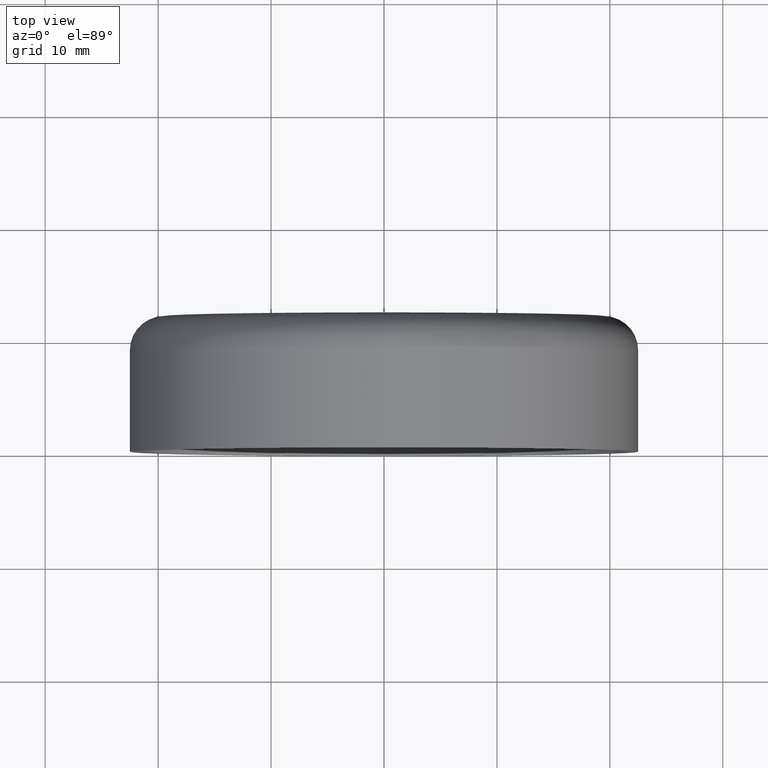
[diagram: clean part render]
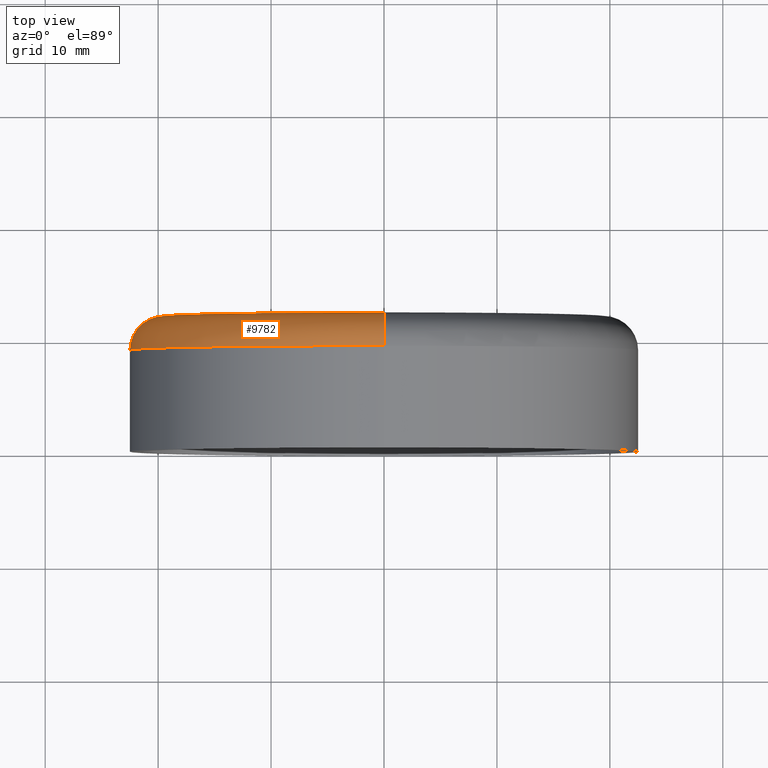
[diagram: same view with one face highlighted and labeled with its STEP entity id]
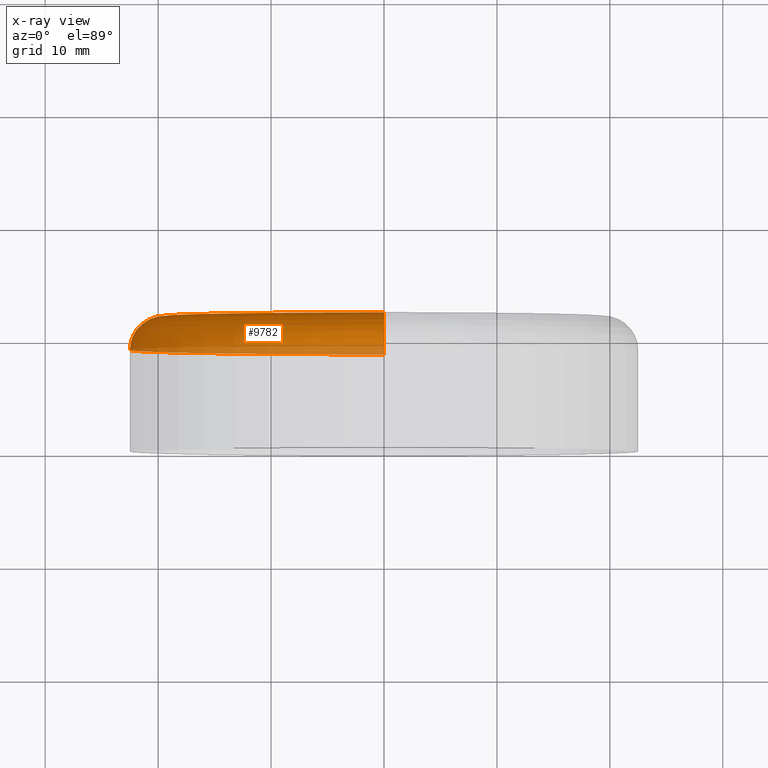
[diagram: x-ray of the same camera — body ghosted, the highlighted face saturated]
A machine part, top view. The second image highlights one B-rep face of the part: STEP entity #9782.
The next image is the same camera in x-ray: the body ghosted, the highlighted face saturated — about 18% of this face is hidden behind the body in this view.
In plain terms, the highlighted toroidal blend (fillet) surface has major radius 19.5 mm and minor (blend) radius 3 mm.
Its self-contained STEP definition (entity closure, byte-faithful):
#232 = CARTESIAN_POINT ( 'NONE',  ( 0.000000000000000000, 12.00000000000000000, 0.000000000000000000 ) ) ;
#289 = EDGE_CURVE ( 'NONE', #3229, #16257, #10585, .T. ) ;
#600 = DIRECTION ( 'NONE',  ( -0.000000000000000000, -1.000000000000000000, -0.000000000000000000 ) ) ;
#1127 = DIRECTION ( 'NONE',  ( -1.224646799147353700E-16, 0.000000000000000000, -1.000000000000000000 ) ) ;
#1257 = CARTESIAN_POINT ( 'NONE',  ( 0.000000000000000000, 12.00000000000000000, -19.50000000000000355 ) ) ;
#1828 = DIRECTION ( 'NONE',  ( 0.000000000000000000, 0.000000000000000000, -1.000000000000000000 ) ) ;
#2066 = DIRECTION ( 'NONE',  ( -1.000000000000000000, 0.000000000000000000, 0.000000000000000000 ) ) ;
#2547 = CARTESIAN_POINT ( 'NONE',  ( 0.000000000000000000, 9.000000000000001776, 0.000000000000000000 ) ) ;
#2782 = FACE_OUTER_BOUND ( 'NONE', #8574, .T. ) ;
#3208 = CIRCLE ( 'NONE', #11960, 22.50000000000000000 ) ;
#3229 = VERTEX_POINT ( 'NONE', #1257 ) ;
#4532 = VERTEX_POINT ( 'NONE', #13323 ) ;
#5652 = EDGE_CURVE ( 'NONE', #4532, #3229, #8021, .T. ) ;
#6322 = AXIS2_PLACEMENT_3D ( 'NONE', #2547, #14509, #10338 ) ;
#7726 = CARTESIAN_POINT ( 'NONE',  ( 2.388061258337339333E-15, 9.000000000000001776, 19.50000000000000355 ) ) ;
#7828 = AXIS2_PLACEMENT_3D ( 'NONE', #15298, #2066, #8535 ) ;
#8021 = CIRCLE ( 'NONE', #12507, 19.50000000000000355 ) ;
#8431 = ORIENTED_EDGE ( 'NONE', *, *, #289, .T. ) ;
#8535 = DIRECTION ( 'NONE',  ( 0.000000000000000000, 0.000000000000000000, 1.000000000000000000 ) ) ;
#8574 = EDGE_LOOP ( 'NONE', ( #13335, #12433, #8431, #12592 ) ) ;
#8908 = CARTESIAN_POINT ( 'NONE',  ( 2.755455298081544778E-15, 9.000000000000001776, 22.50000000000000000 ) ) ;
#9031 = DIRECTION ( 'NONE',  ( 1.000000000000000000, 0.000000000000000000, -1.224646799147353207E-16 ) ) ;
#9087 = EDGE_CURVE ( 'NONE', #12911, #16257, #3208, .T. ) ;
#9306 = EDGE_CURVE ( 'NONE', #4532, #12911, #16010, .T. ) ;
#9466 = DIRECTION ( 'NONE',  ( 0.000000000000000000, 0.000000000000000000, -1.000000000000000000 ) ) ;
#9643 = DIRECTION ( 'NONE',  ( -0.000000000000000000, -1.000000000000000000, -0.000000000000000000 ) ) ;
#9782 = ADVANCED_FACE ( 'NONE', ( #2782 ), #16410, .T. ) ;
#10301 = CARTESIAN_POINT ( 'NONE',  ( 0.000000000000000000, 9.000000000000001776, -22.50000000000000000 ) ) ;
#10338 = DIRECTION ( 'NONE',  ( 0.000000000000000000, 0.000000000000000000, -1.000000000000000000 ) ) ;
#10585 = CIRCLE ( 'NONE', #7828, 2.999999999999995559 ) ;
#11960 = AXIS2_PLACEMENT_3D ( 'NONE', #12476, #600, #1828 ) ;
#12433 = ORIENTED_EDGE ( 'NONE', *, *, #5652, .T. ) ;
#12476 = CARTESIAN_POINT ( 'NONE',  ( 0.000000000000000000, 9.000000000000001776, 0.000000000000000000 ) ) ;
#12507 = AXIS2_PLACEMENT_3D ( 'NONE', #232, #9643, #9466 ) ;
#12592 = ORIENTED_EDGE ( 'NONE', *, *, #9087, .F. ) ;
#12911 = VERTEX_POINT ( 'NONE', #8908 ) ;
#13323 = CARTESIAN_POINT ( 'NONE',  ( 2.571758278209442056E-15, 12.00000000000000000, 19.50000000000000355 ) ) ;
#13335 = ORIENTED_EDGE ( 'NONE', *, *, #9306, .F. ) ;
#14509 = DIRECTION ( 'NONE',  ( -0.000000000000000000, -1.000000000000000000, -0.000000000000000000 ) ) ;
#15263 = AXIS2_PLACEMENT_3D ( 'NONE', #7726, #9031, #1127 ) ;
#15298 = CARTESIAN_POINT ( 'NONE',  ( 0.000000000000000000, 9.000000000000001776, -19.50000000000000355 ) ) ;
#16010 = CIRCLE ( 'NONE', #15263, 2.999999999999995559 ) ;
#16257 = VERTEX_POINT ( 'NONE', #10301 ) ;
#16410 = TOROIDAL_SURFACE ( 'NONE', #6322, 19.50000000000000355, 2.999999999999997335 ) ;